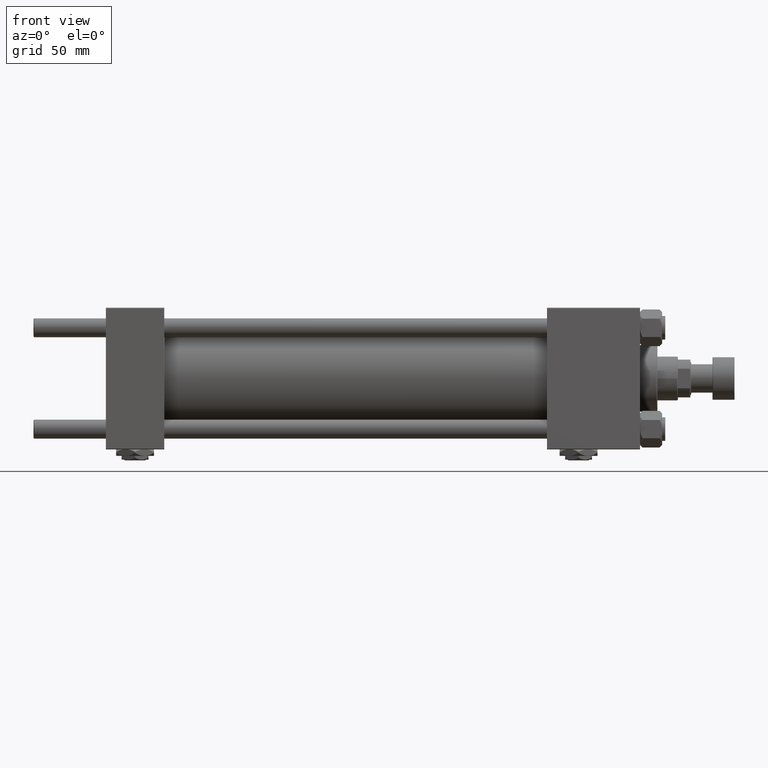
[diagram: clean part render]
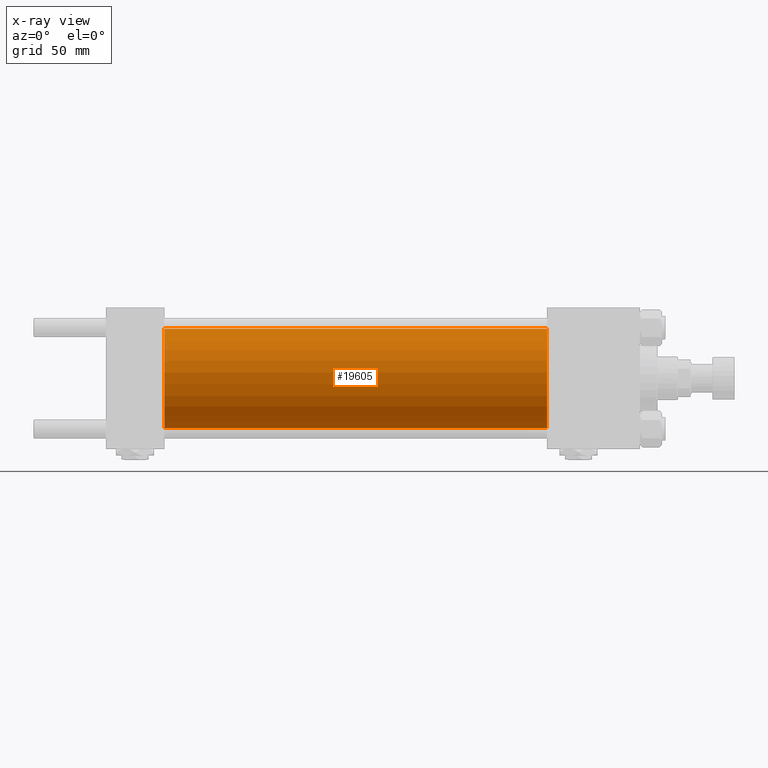
[diagram: x-ray — body ghosted, one internal face saturated and labeled with its STEP entity id]
A machine part, front view, then the same camera in x-ray: the body is ghosted and one INTERNAL B-rep face — a face not visible from any outside direction — is saturated and labeled: STEP entity #19605.
In plain terms, the highlighted cylindrical surface (partial cylindrical patch) has radius 31.5 mm, axis along (-1, -0, -0).
Its self-contained STEP definition (entity closure, byte-faithful):
#193 = DIRECTION ( 'NONE',  ( 0.000000000000000000, 0.000000000000000000, -1.000000000000000000 ) ) ;
#1213 = CYLINDRICAL_SURFACE ( 'NONE', #21815, 31.50000000000000000 ) ;
#1480 = CARTESIAN_POINT ( 'NONE',  ( 279.9999999999999432, 0.000000000000000000, 0.000000000000000000 ) ) ;
#4618 = DIRECTION ( 'NONE',  ( -1.000000000000000000, -0.000000000000000000, -0.000000000000000000 ) ) ;
#6396 = VERTEX_POINT ( 'NONE', #14346 ) ;
#7759 = EDGE_CURVE ( 'NONE', #35793, #27105, #32523, .T. ) ;
#8028 = AXIS2_PLACEMENT_3D ( 'NONE', #21345, #48854, #193 ) ;
#10869 = EDGE_CURVE ( 'NONE', #44179, #27105, #41370, .T. ) ;
#12550 = CARTESIAN_POINT ( 'NONE',  ( 37.00000000000000000, 0.000000000000000000, 31.50000000000000000 ) ) ;
#14346 = CARTESIAN_POINT ( 'NONE',  ( 279.9999999999999432, 0.000000000000000000, 31.50000000000000000 ) ) ;
#15539 = ORIENTED_EDGE ( 'NONE', *, *, #50345, .T. ) ;
#18479 = ORIENTED_EDGE ( 'NONE', *, *, #10869, .T. ) ;
#19605 = ADVANCED_FACE ( 'NONE', ( #44594 ), #1213, .F. ) ;
#20342 = DIRECTION ( 'NONE',  ( 0.000000000000000000, 0.000000000000000000, -1.000000000000000000 ) ) ;
#20606 = DIRECTION ( 'NONE',  ( 1.000000000000000000, 0.000000000000000000, 0.000000000000000000 ) ) ;
#21345 = CARTESIAN_POINT ( 'NONE',  ( 37.00000000000000000, 0.000000000000000000, 0.000000000000000000 ) ) ;
#21815 = AXIS2_PLACEMENT_3D ( 'NONE', #1480, #32427, #40618 ) ;
#23043 = CARTESIAN_POINT ( 'NONE',  ( 279.9999999999999432, 3.857637417314162689E-15, -31.50000000000000000 ) ) ;
#24704 = CARTESIAN_POINT ( 'NONE',  ( 279.9999999999999432, 3.857637417314162689E-15, -31.50000000000000000 ) ) ;
#24808 = CARTESIAN_POINT ( 'NONE',  ( 279.9999999999999432, 0.000000000000000000, 0.000000000000000000 ) ) ;
#27105 = VERTEX_POINT ( 'NONE', #31277 ) ;
#29017 = AXIS2_PLACEMENT_3D ( 'NONE', #24808, #20606, #20342 ) ;
#30282 = ORIENTED_EDGE ( 'NONE', *, *, #39336, .F. ) ;
#30888 = VECTOR ( 'NONE', #4618, 1000.000000000000000 ) ;
#31277 = CARTESIAN_POINT ( 'NONE',  ( 37.00000000000000000, 3.857637417314162689E-15, -31.50000000000000000 ) ) ;
#32427 = DIRECTION ( 'NONE',  ( -1.000000000000000000, -0.000000000000000000, -0.000000000000000000 ) ) ;
#32523 = CIRCLE ( 'NONE', #8028, 31.50000000000000000 ) ;
#35793 = VERTEX_POINT ( 'NONE', #12550 ) ;
#38995 = EDGE_LOOP ( 'NONE', ( #15539, #18479, #46662, #30282 ) ) ;
#39336 = EDGE_CURVE ( 'NONE', #6396, #35793, #47266, .T. ) ;
#40618 = DIRECTION ( 'NONE',  ( 0.000000000000000000, 0.000000000000000000, 1.000000000000000000 ) ) ;
#41370 = LINE ( 'NONE', #24704, #30888 ) ;
#42260 = DIRECTION ( 'NONE',  ( -1.000000000000000000, -0.000000000000000000, -0.000000000000000000 ) ) ;
#42516 = CARTESIAN_POINT ( 'NONE',  ( 279.9999999999999432, 0.000000000000000000, 31.50000000000000000 ) ) ;
#44179 = VERTEX_POINT ( 'NONE', #23043 ) ;
#44594 = FACE_OUTER_BOUND ( 'NONE', #38995, .T. ) ;
#46662 = ORIENTED_EDGE ( 'NONE', *, *, #7759, .F. ) ;
#47266 = LINE ( 'NONE', #42516, #49018 ) ;
#48854 = DIRECTION ( 'NONE',  ( 1.000000000000000000, 0.000000000000000000, 0.000000000000000000 ) ) ;
#49018 = VECTOR ( 'NONE', #42260, 1000.000000000000000 ) ;
#50345 = EDGE_CURVE ( 'NONE', #6396, #44179, #51835, .T. ) ;
#51835 = CIRCLE ( 'NONE', #29017, 31.50000000000000000 ) ;